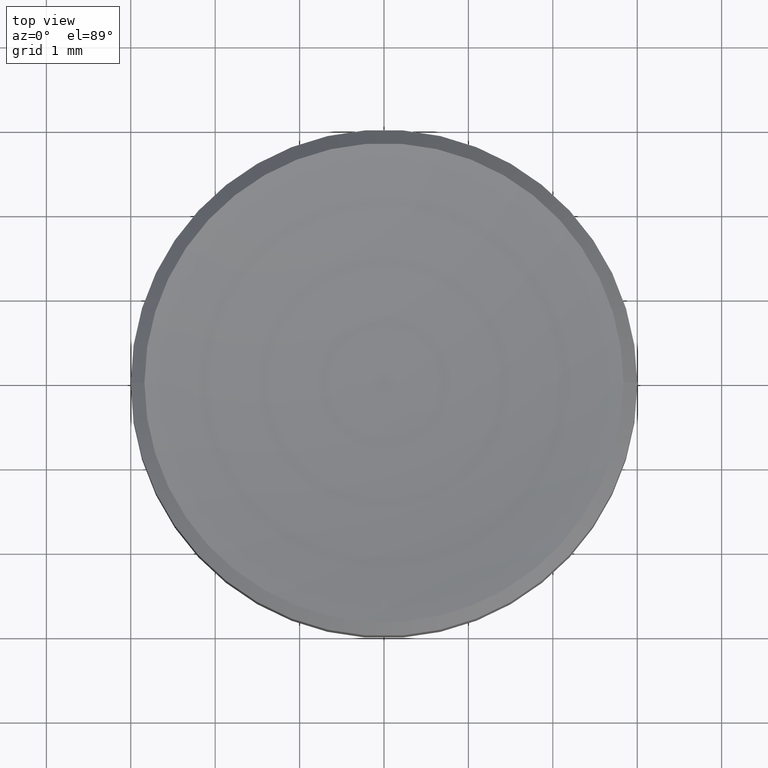
[diagram: clean part render]
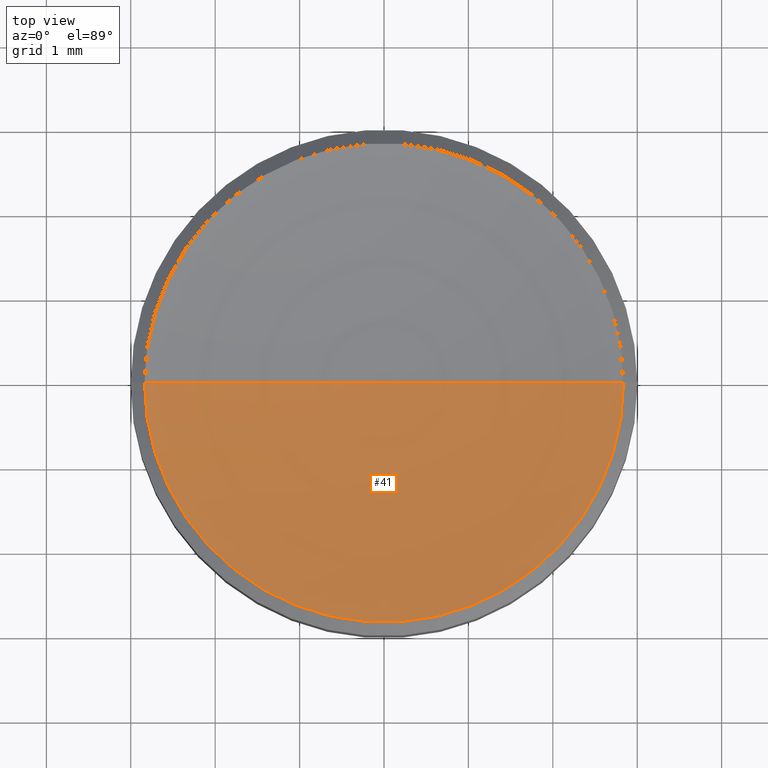
[diagram: same view with one face highlighted and labeled with its STEP entity id]
A machine part, top view. The second image highlights one B-rep face of the part: STEP entity #41.
In plain terms, the highlighted toroidal blend (fillet) surface has major radius 0.0143 mm and minor (blend) radius 12.91 mm.
Its self-contained STEP definition (entity closure, byte-faithful):
#5 = CARTESIAN_POINT ( 'NONE',  ( -0.01425091764846800335, 1.745234068310886743E-18, 14.40999213444168348 ) ) ;
#6 = CARTESIAN_POINT ( 'NONE',  ( 2.837518045210084772, 0.000000000000000000, 1.812481954789914917 ) ) ;
#14 = CARTESIAN_POINT ( 'NONE',  ( 0.01425091764846800335, 0.000000000000000000, 14.40999213444168348 ) ) ;
#15 = CIRCLE ( 'NONE', #176, 2.837518045210084772 ) ;
#20 = VERTEX_POINT ( 'NONE', #147 ) ;
#30 = DIRECTION ( 'NONE',  ( 1.000000000000000000, 0.000000000000000000, 0.000000000000000000 ) ) ;
#38 = ORIENTED_EDGE ( 'NONE', *, *, #102, .T. ) ;
#41 = ADVANCED_FACE ( 'NONE', ( #58 ), #247, .F. ) ;
#47 = AXIS2_PLACEMENT_3D ( 'NONE', #14, #55, #114 ) ;
#55 = DIRECTION ( 'NONE',  ( 0.000000000000000000, -1.000000000000000000, 0.000000000000000000 ) ) ;
#58 = FACE_OUTER_BOUND ( 'NONE', #103, .T. ) ;
#66 = ORIENTED_EDGE ( 'NONE', *, *, #222, .F. ) ;
#67 = DIRECTION ( 'NONE',  ( -1.000000000000000000, 1.224646799147353207E-16, 0.000000000000000000 ) ) ;
#102 = EDGE_CURVE ( 'NONE', #169, #20, #165, .T. ) ;
#103 = EDGE_LOOP ( 'NONE', ( #66, #38, #155 ) ) ;
#108 = DIRECTION ( 'NONE',  ( -0.000000000000000000, -0.000000000000000000, 1.000000000000000000 ) ) ;
#113 = CIRCLE ( 'NONE', #47, 12.90999999999999837 ) ;
#114 = DIRECTION ( 'NONE',  ( 0.000000000000000000, 0.000000000000000000, -1.000000000000000000 ) ) ;
#147 = CARTESIAN_POINT ( 'NONE',  ( -2.837518045210084772, 3.474957391589384965E-16, 1.812481954789914917 ) ) ;
#154 = EDGE_CURVE ( 'NONE', #20, #164, #15, .T. ) ;
#155 = ORIENTED_EDGE ( 'NONE', *, *, #154, .T. ) ;
#156 = DIRECTION ( 'NONE',  ( 1.224646799147353207E-16, 1.000000000000000000, 0.000000000000000000 ) ) ;
#164 = VERTEX_POINT ( 'NONE', #6 ) ;
#165 = CIRCLE ( 'NONE', #200, 12.90999999999999837 ) ;
#169 = VERTEX_POINT ( 'NONE', #214 ) ;
#176 = AXIS2_PLACEMENT_3D ( 'NONE', #254, #194, #199 ) ;
#194 = DIRECTION ( 'NONE',  ( -0.000000000000000000, -0.000000000000000000, 1.000000000000000000 ) ) ;
#199 = DIRECTION ( 'NONE',  ( 1.000000000000000000, 0.000000000000000000, 0.000000000000000000 ) ) ;
#200 = AXIS2_PLACEMENT_3D ( 'NONE', #5, #156, #67 ) ;
#214 = CARTESIAN_POINT ( 'NONE',  ( 0.000000000000000000, 0.000000000000000000, 1.500000000000000000 ) ) ;
#222 = EDGE_CURVE ( 'NONE', #169, #164, #113, .T. ) ;
#245 = AXIS2_PLACEMENT_3D ( 'NONE', #255, #108, #30 ) ;
#247 = TOROIDAL_SURFACE ( 'NONE', #245, 0.01425091764846800335, 12.90999999999999837 ) ;
#254 = CARTESIAN_POINT ( 'NONE',  ( 0.000000000000000000, 0.000000000000000000, 1.812481954789914917 ) ) ;
#255 = CARTESIAN_POINT ( 'NONE',  ( 0.000000000000000000, 0.000000000000000000, 14.40999213444168348 ) ) ;